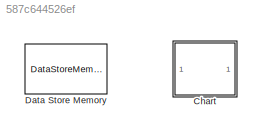
MODEL slx_587c644526ef
KIND model
CONFIG AbsTol = auto
CONFIG EnableMultiTasking = off
CONFIG FixedStep = auto
CONFIG MaxStep = auto
CONFIG MinStep = auto
CONFIG RelTol = 1e-3
CONFIG SampleTimeConstraint = Unconstrained
CONFIG Solver = VariableStepAuto
CONFIG SolverName = VariableStepAuto
CONFIG StartTime = 0.0
CONFIG StopTime = 0.6
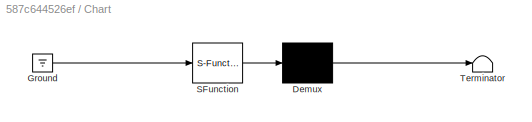
BLOCK [SubSystem] Chart
  ErrorFcn = Stateflow.Translate.translate
  PermitHierarchicalResolution = ExplicitOnly
  Ports = []
  RequestExecContextInheritance = off
  SFBlockType = Chart
  TreatAsAtomicUnit = on
BLOCK [Demux] Chart/ Demux 
  Outputs = 1
  Ports = [1, 1]
BLOCK [Ground] Chart/ Ground 
BLOCK [S-Function] Chart/ SFunction 
  EnableBusSupport = on
  FunctionName = sf_sfun
  PortCounts = [1 1]
  Ports = [1, 1]
  SFcnIsStateOwnerBlock = off
  SFunctionDeploymentMode = off
  Tag = Stateflow S-Function DSM1_2018a 3
BLOCK [Terminator] Chart/ Terminator 
BLOCK [DataStoreMemory] Data Store Memory
  DataStoreName = global_x
  OutDataTypeStr = int32
  ReadBeforeWriteMsg = warning
  ShowAdditionalParam = off
  SignalType = real
  WriteAfterReadMsg = warning
  WriteAfterWriteMsg = warning
CHART Chart states=3 transitions=3
  STATE_LABEL 'A'
  STATE_LABEL 'B'
  STATE_LABEL 'f'
  STATE_LABEL 'SCRIPT:\nfunction f\n  fprintf("%d\\n", global_x);\n'
